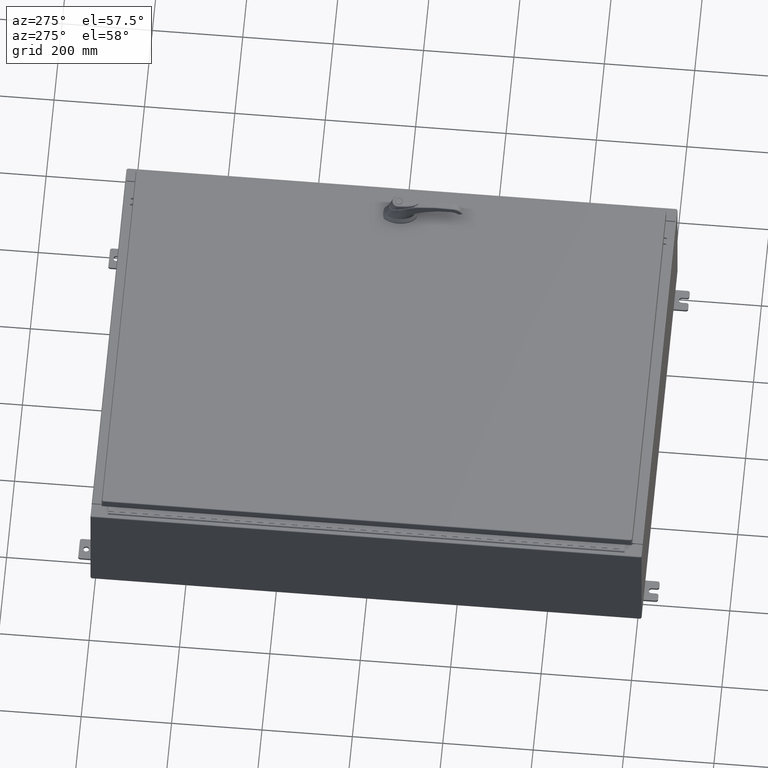
[diagram: clean part render]
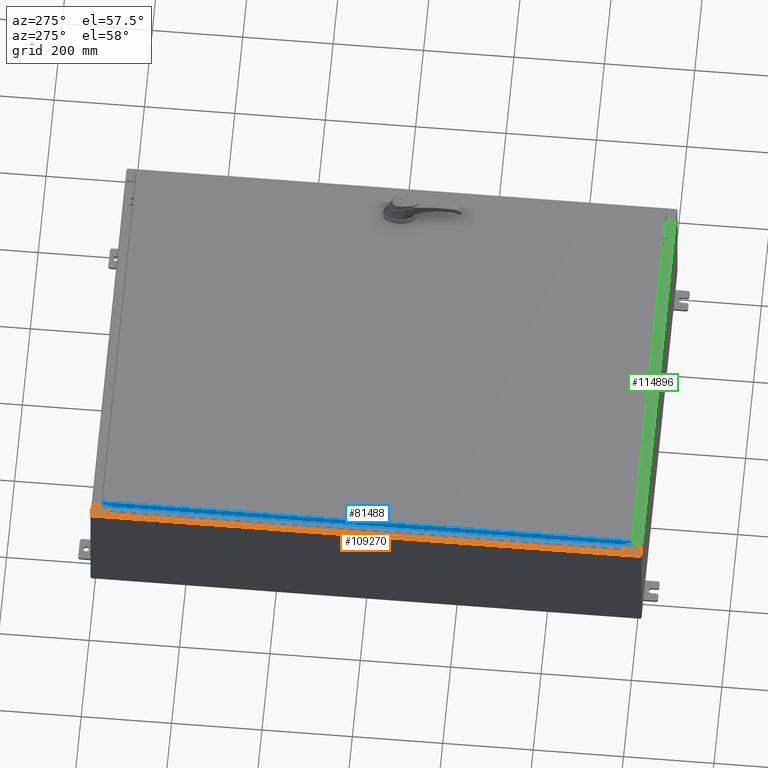
[diagram: same view with three faces highlighted in distinct colors, each labeled with its STEP entity id]
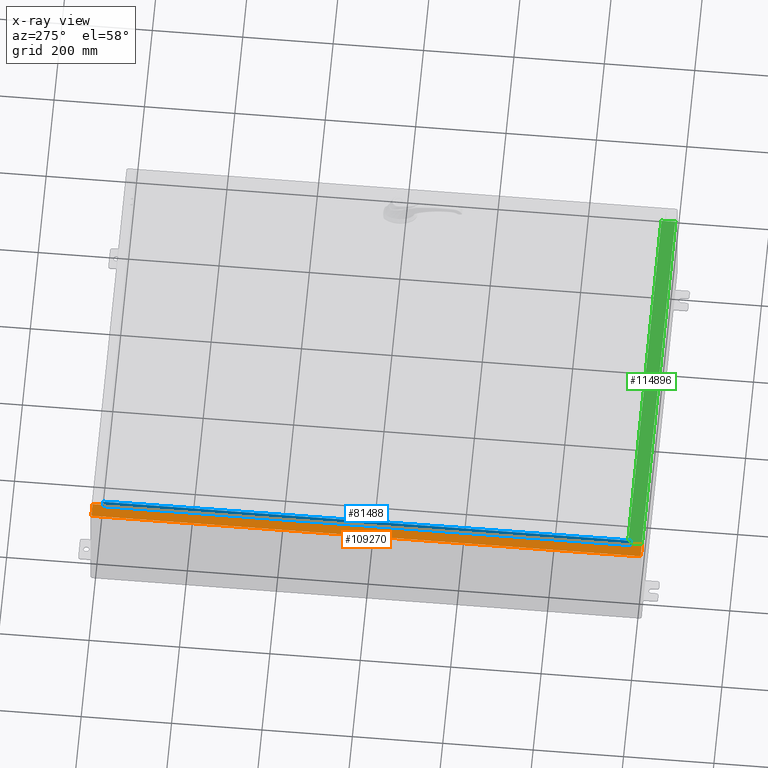
[diagram: x-ray of the same camera — body ghosted, the three highlighted faces saturated]
A machine part, auxiliary view with three faces highlighted in distinct colors.
The next image is the same camera in x-ray (body ghosted, the three faces saturated) — at least one of them is partly hidden behind the body in this view.
Their STEP definitions:

[orange] entity #109270 — the highlighted planar face has unit normal (0, 0, -1).
#1032 = EDGE_CURVE ( 'NONE', #69389, #93174, #120118, .T. ) ;
#3026 = CARTESIAN_POINT ( 'NONE',  ( -16.71270000000004100, 22.59374999999999300, 9.925300000000008900 ) ) ;
#3097 = VERTEX_POINT ( 'NONE', #72697 ) ;
#3447 = VECTOR ( 'NONE', #4696, 39.37007874015748100 ) ;
#4444 = EDGE_CURVE ( 'NONE', #90795, #18294, #8836, .T. ) ;
#4696 = DIRECTION ( 'NONE',  ( 1.000000000000000000, -8.681145560800197900E-014, -4.340572780400098900E-014 ) ) ;
#6503 = VECTOR ( 'NONE', #132349, 39.37007874015748100 ) ;
#8516 = DIRECTION ( 'NONE',  ( 1.000000000000000000, 0.0000000000000000000, 0.0000000000000000000 ) ) ;
#8689 = VERTEX_POINT ( 'NONE', #113918 ) ;
#8836 = LINE ( 'NONE', #48140, #69926 ) ;
#11428 = ORIENTED_EDGE ( 'NONE', *, *, #124424, .F. ) ;
#11440 = AXIS2_PLACEMENT_3D ( 'NONE', #82188, #41443, #113069 ) ;
#14261 = AXIS2_PLACEMENT_3D ( 'NONE', #131321, #70011, #8516 ) ;
#17389 = LINE ( 'NONE', #45005, #102345 ) ;
#17465 = DIRECTION ( 'NONE',  ( 1.000000000000000000, 0.0000000000000000000, 0.0000000000000000000 ) ) ;
#18294 = VERTEX_POINT ( 'NONE', #96233 ) ;
#19333 = DIRECTION ( 'NONE',  ( -1.000000000000000000, -8.681145560800197900E-014, 4.340572780400098900E-014 ) ) ;
#20162 = LINE ( 'NONE', #129493, #71534 ) ;
#20237 = VECTOR ( 'NONE', #92827, 39.37007874015748100 ) ;
#21149 = EDGE_CURVE ( 'NONE', #119759, #58614, #17389, .T. ) ;
#22705 = CARTESIAN_POINT ( 'NONE',  ( -17.91230000000004100, -23.92529999999998600, 9.925300000000000000 ) ) ;
#24817 = CARTESIAN_POINT ( 'NONE',  ( -16.71270000000004100, 22.59374999999999300, 9.925300000000008900 ) ) ;
#26082 = CARTESIAN_POINT ( 'NONE',  ( -16.69970000000003900, 22.63109999999999600, 9.925300000000007100 ) ) ;
#27243 = EDGE_CURVE ( 'NONE', #3097, #18294, #81868, .T. ) ;
#29922 = EDGE_CURVE ( 'NONE', #51184, #8689, #107371, .T. ) ;
#30084 = DIRECTION ( 'NONE',  ( -3.203758888773074600E-031, 1.000000000000000000, -2.285165089420047000E-045 ) ) ;
#33025 = ORIENTED_EDGE ( 'NONE', *, *, #29922, .F. ) ;
#33387 = EDGE_CURVE ( 'NONE', #8689, #105963, #20162, .T. ) ;
#34201 = CARTESIAN_POINT ( 'NONE',  ( -16.69970000000003900, -23.92529999999998600, 9.925300000000007100 ) ) ;
#35683 = CARTESIAN_POINT ( 'NONE',  ( -16.75005000000004100, -22.63109999999998200, 9.925300000000008900 ) ) ;
#38402 = VECTOR ( 'NONE', #30084, 39.37007874015748100 ) ;
#39239 = CIRCLE ( 'NONE', #45965, 0.01867499999999949400 ) ;
#41170 = CARTESIAN_POINT ( 'NONE',  ( -16.69970000000003900, -22.63109999999999600, 9.925300000000007100 ) ) ;
#41443 = DIRECTION ( 'NONE',  ( 7.132762385546384700E-015, 0.0000000000000000000, -1.000000000000000000 ) ) ;
#43896 = DIRECTION ( 'NONE',  ( -3.203758888773074600E-031, 1.000000000000000000, -2.285165089420047000E-045 ) ) ;
#44685 = CARTESIAN_POINT ( 'NONE',  ( -16.75005000000004100, -22.59374999999998200, 9.925300000000007100 ) ) ;
#45005 = CARTESIAN_POINT ( 'NONE',  ( -16.71270000000004100, -22.59374999999998200, 9.925300000000008900 ) ) ;
#45965 = AXIS2_PLACEMENT_3D ( 'NONE', #109576, #48247, #119861 ) ;
#48140 = CARTESIAN_POINT ( 'NONE',  ( -17.91230000000004100, 23.92529999999998900, 9.925300000000000000 ) ) ;
#48247 = DIRECTION ( 'NONE',  ( -7.132762385546384700E-015, -0.0000000000000000000, 1.000000000000000000 ) ) ;
#51184 = VERTEX_POINT ( 'NONE', #66124 ) ;
#51965 = CARTESIAN_POINT ( 'NONE',  ( -16.75005000000004100, -22.63109999999998200, 9.925300000000007100 ) ) ;
#52225 = CARTESIAN_POINT ( 'NONE',  ( -16.71270000000004100, -22.59374999999998200, 9.925300000000008900 ) ) ;
#54934 = LINE ( 'NONE', #70926, #106173 ) ;
#58081 = LINE ( 'NONE', #35683, #3447 ) ;
#58614 = VERTEX_POINT ( 'NONE', #44685 ) ;
#59640 = ORIENTED_EDGE ( 'NONE', *, *, #21149, .F. ) ;
#59939 = ORIENTED_EDGE ( 'NONE', *, *, #98149, .F. ) ;
#60447 = ORIENTED_EDGE ( 'NONE', *, *, #82101, .F. ) ;
#62251 = VECTOR ( 'NONE', #43896, 39.37007874015748100 ) ;
#64742 = VERTEX_POINT ( 'NONE', #51965 ) ;
#66124 = CARTESIAN_POINT ( 'NONE',  ( -16.75005000000004100, 22.63109999999999300, 9.925300000000007100 ) ) ;
#69389 = VERTEX_POINT ( 'NONE', #34201 ) ;
#69543 = VERTEX_POINT ( 'NONE', #26082 ) ;
#69926 = VECTOR ( 'NONE', #119748, 39.37007874015748100 ) ;
#70011 = DIRECTION ( 'NONE',  ( -7.132762385546384700E-015, -0.0000000000000000000, 1.000000000000000000 ) ) ;
#70926 = CARTESIAN_POINT ( 'NONE',  ( -16.69970000000003900, 22.63109999999999600, 9.925300000000007100 ) ) ;
#70980 = ORIENTED_EDGE ( 'NONE', *, *, #79628, .T. ) ;
#71534 = VECTOR ( 'NONE', #17465, 39.37007874015748100 ) ;
#72697 = CARTESIAN_POINT ( 'NONE',  ( -16.69970000000003900, 23.92529999999998900, 9.925300000000007100 ) ) ;
#74822 = LINE ( 'NONE', #103123, #20237 ) ;
#74946 = EDGE_LOOP ( 'NONE', ( #128992, #118597, #106632, #116684, #70980, #83465, #11428, #60447, #59640, #59939, #105414, #33025 ) ) ;
#78296 = EDGE_CURVE ( 'NONE', #69543, #3097, #113480, .T. ) ;
#79628 = EDGE_CURVE ( 'NONE', #90795, #69389, #74822, .T. ) ;
#81868 = LINE ( 'NONE', #91644, #6503 ) ;
#82101 = EDGE_CURVE ( 'NONE', #58614, #64742, #39239, .T. ) ;
#82188 = CARTESIAN_POINT ( 'NONE',  ( -7.105562016127600600E-014, 0.0000000000000000000, 9.925300000000126100 ) ) ;
#83465 = ORIENTED_EDGE ( 'NONE', *, *, #1032, .T. ) ;
#85760 = DIRECTION ( 'NONE',  ( -1.000000000000000000, 0.0000000000000000000, 0.0000000000000000000 ) ) ;
#86255 = DIRECTION ( 'NONE',  ( -0.0000000000000000000, -1.000000000000000000, -0.0000000000000000000 ) ) ;
#90795 = VERTEX_POINT ( 'NONE', #22705 ) ;
#91644 = CARTESIAN_POINT ( 'NONE',  ( -7.105562016127600600E-014, 23.92529999999998900, 9.925300000000126100 ) ) ;
#92827 = DIRECTION ( 'NONE',  ( 1.000000000000000000, -3.566381192773193100E-015, 7.132762385546384700E-015 ) ) ;
#93174 = VERTEX_POINT ( 'NONE', #41170 ) ;
#96233 = CARTESIAN_POINT ( 'NONE',  ( -17.91230000000004100, 23.92529999999998900, 9.925300000000000000 ) ) ;
#98149 = EDGE_CURVE ( 'NONE', #105963, #119759, #124476, .T. ) ;
#102345 = VECTOR ( 'NONE', #85760, 39.37007874015748100 ) ;
#102763 = PLANE ( 'NONE',  #11440 ) ;
#103123 = CARTESIAN_POINT ( 'NONE',  ( -1.563823601127326600E-013, -23.92530000000005300, 9.925300000000126100 ) ) ;
#105209 = CARTESIAN_POINT ( 'NONE',  ( -16.69970000000003900, -5.350181231484360800E-030, 9.925300000000007100 ) ) ;
#105414 = ORIENTED_EDGE ( 'NONE', *, *, #33387, .F. ) ;
#105963 = VERTEX_POINT ( 'NONE', #3026 ) ;
#106173 = VECTOR ( 'NONE', #19333, 39.37007874015748100 ) ;
#106632 = ORIENTED_EDGE ( 'NONE', *, *, #27243, .T. ) ;
#107371 = CIRCLE ( 'NONE', #14261, 0.01867499999999949400 ) ;
#109270 = ADVANCED_FACE ( 'NONE', ( #123329 ), #102763, .F. ) ;
#109576 = CARTESIAN_POINT ( 'NONE',  ( -16.75005000000004100, -22.61242499999998400, 9.925300000000008900 ) ) ;
#113069 = DIRECTION ( 'NONE',  ( -1.000000000000000000, 0.0000000000000000000, -7.132762385546384700E-015 ) ) ;
#113480 = LINE ( 'NONE', #105209, #62251 ) ;
#113918 = CARTESIAN_POINT ( 'NONE',  ( -16.75005000000004100, 22.59374999999999300, 9.925300000000007100 ) ) ;
#116684 = ORIENTED_EDGE ( 'NONE', *, *, #4444, .F. ) ;
#117540 = CARTESIAN_POINT ( 'NONE',  ( -16.69970000000003900, -5.350181231484360800E-030, 9.925300000000007100 ) ) ;
#118597 = ORIENTED_EDGE ( 'NONE', *, *, #78296, .T. ) ;
#119748 = DIRECTION ( 'NONE',  ( -0.0000000000000000000, 1.000000000000000000, -0.0000000000000000000 ) ) ;
#119759 = VERTEX_POINT ( 'NONE', #52225 ) ;
#119861 = DIRECTION ( 'NONE',  ( 1.000000000000000000, 0.0000000000000000000, 0.0000000000000000000 ) ) ;
#120118 = LINE ( 'NONE', #117540, #38402 ) ;
#122436 = EDGE_CURVE ( 'NONE', #69543, #51184, #54934, .T. ) ;
#123329 = FACE_OUTER_BOUND ( 'NONE', #74946, .T. ) ;
#124424 = EDGE_CURVE ( 'NONE', #64742, #93174, #58081, .T. ) ;
#124476 = LINE ( 'NONE', #24817, #127732 ) ;
#127732 = VECTOR ( 'NONE', #86255, 39.37007874015748100 ) ;
#128992 = ORIENTED_EDGE ( 'NONE', *, *, #122436, .F. ) ;
#129493 = CARTESIAN_POINT ( 'NONE',  ( -16.75005000000004100, 22.59374999999999300, 9.925300000000008900 ) ) ;
#131321 = CARTESIAN_POINT ( 'NONE',  ( -16.75005000000004100, 22.61242499999999100, 9.925300000000008900 ) ) ;
#132349 = DIRECTION ( 'NONE',  ( -1.000000000000000000, -8.144358738339254500E-032, -7.132762385546384700E-015 ) ) ;

[blue] entity #81488 — the highlighted planar face has unit normal (1, -0, -0).
#5978 = ORIENTED_EDGE ( 'NONE', *, *, #42087, .F. ) ;
#6647 = CARTESIAN_POINT ( 'NONE',  ( -17.07799999999999600, 1.616160042809321200E-015, 5.207755671951099000E-014 ) ) ;
#7594 = CARTESIAN_POINT ( 'NONE',  ( -17.07799999999999900, -23.00515786437626900, -0.08770000000000334500 ) ) ;
#10839 = CARTESIAN_POINT ( 'NONE',  ( -17.07800000000000300, -23.09400000000000100, -0.7949999999999997100 ) ) ;
#15283 = CARTESIAN_POINT ( 'NONE',  ( -17.07799999999999900, -23.09400000000000100, -0.08770000000000004200 ) ) ;
#16124 = EDGE_CURVE ( 'NONE', #50071, #130242, #50322, .T. ) ;
#18293 = DIRECTION ( 'NONE',  ( -3.034122441942816500E-015, 0.0000000000000000000, -1.000000000000000000 ) ) ;
#25921 = VERTEX_POINT ( 'NONE', #56853 ) ;
#28585 = ORIENTED_EDGE ( 'NONE', *, *, #16124, .F. ) ;
#31191 = EDGE_LOOP ( 'NONE', ( #45643, #116756, #5978, #28585 ) ) ;
#31347 = EDGE_CURVE ( 'NONE', #123652, #50071, #76643, .T. ) ;
#42087 = EDGE_CURVE ( 'NONE', #130242, #25921, #103082, .T. ) ;
#45643 = ORIENTED_EDGE ( 'NONE', *, *, #31347, .F. ) ;
#49436 = VECTOR ( 'NONE', #107585, 39.37007874015748100 ) ;
#50071 = VERTEX_POINT ( 'NONE', #7594 ) ;
#50322 = LINE ( 'NONE', #63831, #87235 ) ;
#56853 = CARTESIAN_POINT ( 'NONE',  ( -17.07799999999999600, 23.00515786437627600, -0.7949999999999941600 ) ) ;
#60495 = CARTESIAN_POINT ( 'NONE',  ( -17.07799999999999600, 23.00515786437627200, 2.127217154807312100E-013 ) ) ;
#63831 = CARTESIAN_POINT ( 'NONE',  ( -17.07799999999999900, -23.00515786437627200, -0.07469999999999976700 ) ) ;
#74569 = FACE_OUTER_BOUND ( 'NONE', #31191, .T. ) ;
#76643 = LINE ( 'NONE', #15283, #49436 ) ;
#79102 = VECTOR ( 'NONE', #82626, 39.37007874015748100 ) ;
#79703 = DIRECTION ( 'NONE',  ( 1.000000000000000000, -9.463403459476060900E-017, -3.034122441942816500E-015 ) ) ;
#81488 = ADVANCED_FACE ( 'NONE', ( #74569 ), #120461, .F. ) ;
#82626 = DIRECTION ( 'NONE',  ( 9.463403459476099200E-017, 1.000000000000000000, 1.212498568245375300E-016 ) ) ;
#87235 = VECTOR ( 'NONE', #125117, 39.37007874015748100 ) ;
#88267 = LINE ( 'NONE', #60495, #112236 ) ;
#93081 = EDGE_CURVE ( 'NONE', #123652, #25921, #88267, .T. ) ;
#103082 = LINE ( 'NONE', #10839, #79102 ) ;
#107585 = DIRECTION ( 'NONE',  ( -9.463403459476019000E-017, -1.000000000000000000, 1.419510518921414800E-016 ) ) ;
#112236 = VECTOR ( 'NONE', #132071, 39.37007874015748100 ) ;
#113238 = CARTESIAN_POINT ( 'NONE',  ( -17.07800000000000300, -23.00515786437626900, -0.7949999999999996000 ) ) ;
#115134 = CARTESIAN_POINT ( 'NONE',  ( -17.07799999999999600, 23.00515786437627200, -0.08770000000000659200 ) ) ;
#116756 = ORIENTED_EDGE ( 'NONE', *, *, #93081, .T. ) ;
#120461 = PLANE ( 'NONE',  #126537 ) ;
#123652 = VERTEX_POINT ( 'NONE', #115134 ) ;
#125117 = DIRECTION ( 'NONE',  ( -3.034122441942816100E-015, 6.982962677686267500E-015, -1.000000000000000000 ) ) ;
#126537 = AXIS2_PLACEMENT_3D ( 'NONE', #6647, #79703, #18293 ) ;
#130242 = VERTEX_POINT ( 'NONE', #113238 ) ;
#132071 = DIRECTION ( 'NONE',  ( -3.034122441942816100E-015, 6.982962677686267500E-015, -1.000000000000000000 ) ) ;

[green] entity #114896 — the highlighted planar face has unit normal (-0, -0, 1).
#1773 = EDGE_CURVE ( 'NONE', #32968, #50341, #89582, .T. ) ;
#2199 = CARTESIAN_POINT ( 'NONE',  ( -16.63720000000000000, -0.07469999999999973900, 5.000000000000000000 ) ) ;
#2362 = DIRECTION ( 'NONE',  ( -0.0000000000000000000, -1.000000000000000000, 3.566381192773190000E-015 ) ) ;
#2364 = VECTOR ( 'NONE', #77932, 39.37007874015748100 ) ;
#2799 = EDGE_CURVE ( 'NONE', #13137, #47427, #76545, .T. ) ;
#5535 = ORIENTED_EDGE ( 'NONE', *, *, #1773, .T. ) ;
#10359 = VECTOR ( 'NONE', #2362, 39.37007874015748100 ) ;
#13137 = VERTEX_POINT ( 'NONE', #132650 ) ;
#22311 = PLANE ( 'NONE',  #49264 ) ;
#32968 = VERTEX_POINT ( 'NONE', #111244 ) ;
#39662 = CARTESIAN_POINT ( 'NONE',  ( 2.880088825576501100E-018, -0.08770000000000081900, 5.000000000000000000 ) ) ;
#42688 = CARTESIAN_POINT ( 'NONE',  ( 16.63720000000000400, -1.287299999999999900, 5.000000000000002700 ) ) ;
#47427 = VERTEX_POINT ( 'NONE', #78279 ) ;
#49264 = AXIS2_PLACEMENT_3D ( 'NONE', #83748, #114623, #53305 ) ;
#50341 = VERTEX_POINT ( 'NONE', #61852 ) ;
#50522 = LINE ( 'NONE', #2199, #2364 ) ;
#53305 = DIRECTION ( 'NONE',  ( 0.0000000000000000000, -1.000000000000000000, 3.566381192773190000E-015 ) ) ;
#61852 = CARTESIAN_POINT ( 'NONE',  ( -16.63720000000000000, -0.08770000000000081900, 5.000000000000000000 ) ) ;
#63861 = CARTESIAN_POINT ( 'NONE',  ( 16.63720000000000000, -1.300299999999999800, 5.000000000000004400 ) ) ;
#65547 = VECTOR ( 'NONE', #110280, 39.37007874015748100 ) ;
#75043 = ORIENTED_EDGE ( 'NONE', *, *, #131072, .F. ) ;
#76545 = LINE ( 'NONE', #42688, #127827 ) ;
#77601 = FACE_OUTER_BOUND ( 'NONE', #97737, .T. ) ;
#77932 = DIRECTION ( 'NONE',  ( -0.0000000000000000000, 1.000000000000000000, -3.566381192773190000E-015 ) ) ;
#78279 = CARTESIAN_POINT ( 'NONE',  ( -16.63720000000000000, -1.287299999999999200, 5.000000000000004400 ) ) ;
#81366 = EDGE_CURVE ( 'NONE', #47427, #50341, #50522, .T. ) ;
#83748 = CARTESIAN_POINT ( 'NONE',  ( 0.0000000000000000000, 1.782631094477737600E-014, 5.000000000000000000 ) ) ;
#89582 = LINE ( 'NONE', #39662, #65547 ) ;
#92208 = LINE ( 'NONE', #63861, #10359 ) ;
#94307 = DIRECTION ( 'NONE',  ( -1.000000000000000000, 0.0000000000000000000, 0.0000000000000000000 ) ) ;
#96382 = ORIENTED_EDGE ( 'NONE', *, *, #2799, .F. ) ;
#97737 = EDGE_LOOP ( 'NONE', ( #128857, #96382, #75043, #5535 ) ) ;
#110280 = DIRECTION ( 'NONE',  ( -1.000000000000000000, -3.284023746380717400E-017, 1.171208052571274300E-031 ) ) ;
#111244 = CARTESIAN_POINT ( 'NONE',  ( 16.63720000000000400, -0.08770000000000047200, 5.000000000000000000 ) ) ;
#114623 = DIRECTION ( 'NONE',  ( 0.0000000000000000000, 3.566381192773190000E-015, 1.000000000000000000 ) ) ;
#114896 = ADVANCED_FACE ( 'NONE', ( #77601 ), #22311, .T. ) ;
#127827 = VECTOR ( 'NONE', #94307, 39.37007874015748100 ) ;
#128857 = ORIENTED_EDGE ( 'NONE', *, *, #81366, .F. ) ;
#131072 = EDGE_CURVE ( 'NONE', #32968, #13137, #92208, .T. ) ;
#132650 = CARTESIAN_POINT ( 'NONE',  ( 16.63720000000000000, -1.287299999999999900, 5.000000000000004400 ) ) ;